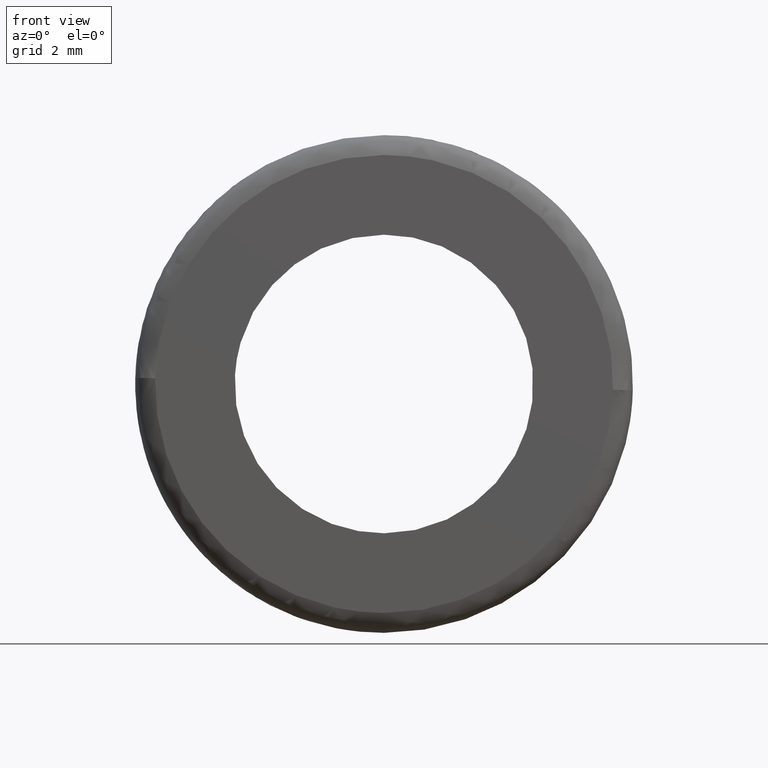
[diagram: clean part render]
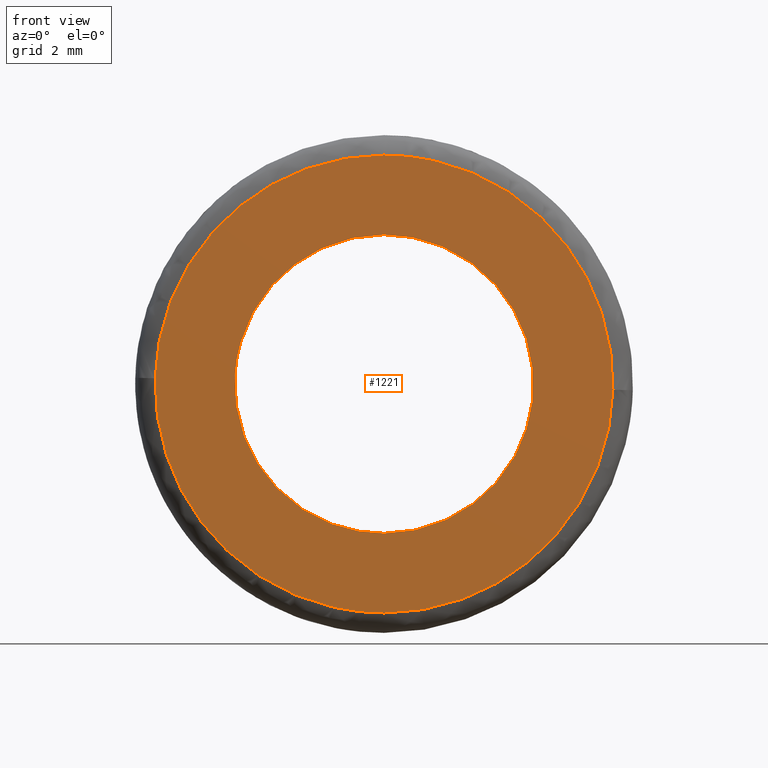
[diagram: same view with one face highlighted and labeled with its STEP entity id]
A machine part, front view. The second image highlights one B-rep face of the part: STEP entity #1221.
In plain terms, the highlighted face is a freeform B-spline surface patch.
Its self-contained STEP definition (entity closure, byte-faithful):
#701=CARTESIAN_POINT('',(4.468543426855896,-1.023782E-015,-0.531149359672578));
#702=VERTEX_POINT('',#701);
#708=CARTESIAN_POINT('',(0.0,-8.266093E-016,4.500000000000000));
#709=VERTEX_POINT('',#708);
#710=CARTESIAN_POINT('',(4.468543426855896,-1.023782E-015,-0.531149359672578));
#711=CARTESIAN_POINT('',(4.500000000000001,-8.266093E-016,-0.266506165468297));
#712=CARTESIAN_POINT('',(4.500000000000000,-8.266093E-016,-1.928755E-016));
#713=CARTESIAN_POINT('',(4.500000000000000,-8.266093E-016,4.500000000000000));
#714=CARTESIAN_POINT('',(0.0,-8.266093E-016,4.500000000000000));
#722=(BOUNDED_CURVE()B_SPLINE_CURVE(2,(#710,#711,#712,#713,#714),.UNSPECIFIED.,.F.,.U.)B_SPLINE_CURVE_WITH_KNOTS((3,2,3),(0.229562651132181,0.250000000000000,0.500000000000000),.UNSPECIFIED.)CURVE()GEOMETRIC_REPRESENTATION_ITEM()RATIONAL_B_SPLINE_CURVE((0.956027102323862,0.976056156424364,1.0,0.707106781186547,1.0))REPRESENTATION_ITEM(''));
#723=EDGE_CURVE('',#702,#709,#722,.T.);
#725=CARTESIAN_POINT('',(-4.491606644914510,-1.356994E-015,0.274717577448348));
#726=VERTEX_POINT('',#725);
#727=CARTESIAN_POINT('',(0.0,-8.266093E-016,4.500000000000000));
#728=CARTESIAN_POINT('',(-4.233178907124497,-8.266093E-016,4.500000000000000));
#729=CARTESIAN_POINT('',(-4.491606644914510,-1.356994E-015,0.274717577448348));
#737=(BOUNDED_CURVE()B_SPLINE_CURVE(2,(#727,#728,#729),.UNSPECIFIED.,.F.,.U.)B_SPLINE_CURVE_WITH_KNOTS((3,3),(0.500000000000000,0.739333027583353),.UNSPECIFIED.)CURVE()GEOMETRIC_REPRESENTATION_ITEM()RATIONAL_B_SPLINE_CURVE((1.0,0.719603916730972,0.976072181712267))REPRESENTATION_ITEM(''));
#738=EDGE_CURVE('',#709,#726,#737,.T.);
#812=CARTESIAN_POINT('',(0.0,-8.266093E-016,-4.500000000000000));
#813=VERTEX_POINT('',#812);
#814=CARTESIAN_POINT('',(-4.491606644914510,-1.356994E-015,0.274717577448348));
#815=CARTESIAN_POINT('',(-4.500000000000000,-8.266093E-016,0.137486582000554));
#816=CARTESIAN_POINT('',(-4.500000000000000,-8.266093E-016,-1.928755E-016));
#817=CARTESIAN_POINT('',(-4.500000000000000,-8.266093E-016,-4.500000000000000));
#818=CARTESIAN_POINT('',(0.0,-8.266093E-016,-4.500000000000000));
#826=(BOUNDED_CURVE()B_SPLINE_CURVE(2,(#814,#815,#816,#817,#818),.UNSPECIFIED.,.F.,.U.)B_SPLINE_CURVE_WITH_KNOTS((3,2,3),(0.739333027583352,0.750000000000000,1.0),.UNSPECIFIED.)CURVE()GEOMETRIC_REPRESENTATION_ITEM()RATIONAL_B_SPLINE_CURVE((0.976072181712265,0.987502864455574,1.0,0.707106781186547,1.0))REPRESENTATION_ITEM(''));
#827=EDGE_CURVE('',#726,#813,#826,.T.);
#829=CARTESIAN_POINT('',(0.0,-8.266093E-016,-4.500000000000000));
#830=CARTESIAN_POINT('',(3.996789596834808,-8.266093E-016,-4.500000000000000));
#831=CARTESIAN_POINT('',(4.468543426855896,-1.023782E-015,-0.531149359672578));
#839=(BOUNDED_CURVE()B_SPLINE_CURVE(2,(#829,#830,#831),.UNSPECIFIED.,.F.,.U.)B_SPLINE_CURVE_WITH_KNOTS((3,3),(0.0,0.229562651132181),.UNSPECIFIED.)CURVE()GEOMETRIC_REPRESENTATION_ITEM()RATIONAL_B_SPLINE_CURVE((1.0,0.731050624762184,0.956027102323862))REPRESENTATION_ITEM(''));
#840=EDGE_CURVE('',#813,#702,#839,.T.);
#1026=CARTESIAN_POINT('',(6.897820906485180,-1.804910E-014,-0.173397658588621));
#1027=VERTEX_POINT('',#1026);
#1041=CARTESIAN_POINT('',(0.0,-1.267468E-015,-6.900000000000000));
#1042=VERTEX_POINT('',#1041);
#1043=CARTESIAN_POINT('',(0.0,-1.267468E-015,-6.900000000000000));
#1044=CARTESIAN_POINT('',(6.728727345609864,-1.267468E-015,-6.900000000000000));
#1045=CARTESIAN_POINT('',(6.897820906485179,-1.804910E-014,-0.173397658588621));
#1053=(BOUNDED_CURVE()B_SPLINE_CURVE(2,(#1043,#1044,#1045),.UNSPECIFIED.,.F.,.U.)B_SPLINE_CURVE_WITH_KNOTS((3,3),(0.0,0.245579891768856),.UNSPECIFIED.)CURVE()GEOMETRIC_REPRESENTATION_ITEM()RATIONAL_B_SPLINE_CURVE((1.0,0.712285260095842,0.989826157679425))REPRESENTATION_ITEM(''));
#1054=EDGE_CURVE('',#1042,#1027,#1053,.T.);
#1056=CARTESIAN_POINT('',(-6.897820906485181,-1.804910E-014,0.173397658588621));
#1057=VERTEX_POINT('',#1056);
#1058=CARTESIAN_POINT('',(-6.897820906485181,-1.804910E-014,0.173397658588621));
#1059=CARTESIAN_POINT('',(-6.899999999999999,-1.267468E-015,0.086712521670088));
#1060=CARTESIAN_POINT('',(-6.900000000000000,-1.267468E-015,-1.928755E-016));
#1061=CARTESIAN_POINT('',(-6.900000000000000,-1.267468E-015,-6.900000000000000));
#1062=CARTESIAN_POINT('',(0.0,-1.267468E-015,-6.900000000000000));
#1070=(BOUNDED_CURVE()B_SPLINE_CURVE(2,(#1058,#1059,#1060,#1061,#1062),.UNSPECIFIED.,.F.,.U.)B_SPLINE_CURVE_WITH_KNOTS((3,2,3),(0.745579891768856,0.750000000000000,1.0),.UNSPECIFIED.)CURVE()GEOMETRIC_REPRESENTATION_ITEM()RATIONAL_B_SPLINE_CURVE((0.989826157679425,0.994821521090705,1.0,0.707106781186548,1.0))REPRESENTATION_ITEM(''));
#1071=EDGE_CURVE('',#1057,#1042,#1070,.T.);
#1115=CARTESIAN_POINT('',(0.0,-1.267468E-015,6.900000000000000));
#1116=VERTEX_POINT('',#1115);
#1117=CARTESIAN_POINT('',(0.0,-1.267468E-015,6.900000000000000));
#1118=CARTESIAN_POINT('',(-6.728727345609904,-1.267468E-015,6.900000000000000));
#1119=CARTESIAN_POINT('',(-6.897820906485181,-1.804910E-014,0.173397658588621));
#1127=(BOUNDED_CURVE()B_SPLINE_CURVE(2,(#1117,#1118,#1119),.UNSPECIFIED.,.F.,.U.)B_SPLINE_CURVE_WITH_KNOTS((3,3),(0.500000000000000,0.745579891768857),.UNSPECIFIED.)CURVE()GEOMETRIC_REPRESENTATION_ITEM()RATIONAL_B_SPLINE_CURVE((1.0,0.712285260095841,0.989826157679427))REPRESENTATION_ITEM(''));
#1128=EDGE_CURVE('',#1116,#1057,#1127,.T.);
#1130=CARTESIAN_POINT('',(6.897820906485179,-1.804910E-014,-0.173397658588621));
#1131=CARTESIAN_POINT('',(6.900000000000000,-1.267468E-015,-0.086712521670089));
#1132=CARTESIAN_POINT('',(6.900000000000000,-1.267468E-015,-1.928755E-016));
#1133=CARTESIAN_POINT('',(6.900000000000000,-1.267468E-015,6.900000000000000));
#1134=CARTESIAN_POINT('',(0.0,-1.267468E-015,6.900000000000000));
#1142=(BOUNDED_CURVE()B_SPLINE_CURVE(2,(#1130,#1131,#1132,#1133,#1134),.UNSPECIFIED.,.F.,.U.)B_SPLINE_CURVE_WITH_KNOTS((3,2,3),(0.245579891768856,0.250000000000000,0.500000000000000),.UNSPECIFIED.)CURVE()GEOMETRIC_REPRESENTATION_ITEM()RATIONAL_B_SPLINE_CURVE((0.989826157679425,0.994821521090705,1.0,0.707106781186548,1.0))REPRESENTATION_ITEM(''));
#1143=EDGE_CURVE('',#1027,#1116,#1142,.T.);
#1204=CARTESIAN_POINT('',(-7.586913317808033,-1.047038E-015,-7.589310102797448));
#1205=CARTESIAN_POINT('',(-7.586913317808033,-1.047038E-015,7.589310349560679));
#1206=CARTESIAN_POINT('',(7.586913564493332,-1.047038E-015,-7.589310102797448));
#1207=CARTESIAN_POINT('',(7.586913564493332,-1.047038E-015,7.589310349560679));
#1208=B_SPLINE_SURFACE_WITH_KNOTS('',1,1,((#1204,#1206),(#1205,#1207)),.UNSPECIFIED.,.F.,.F.,.U.,(2,2),(2,2),(0.0,15.178620452358130),(0.0,15.173826882301370),.UNSPECIFIED.);
#1209=ORIENTED_EDGE('',*,*,#1054,.T.);
#1210=ORIENTED_EDGE('',*,*,#1143,.T.);
#1211=ORIENTED_EDGE('',*,*,#1128,.T.);
#1212=ORIENTED_EDGE('',*,*,#1071,.T.);
#1213=EDGE_LOOP('',(#1209,#1210,#1211,#1212));
#1214=FACE_OUTER_BOUND('',#1213,.T.);
#1215=ORIENTED_EDGE('',*,*,#738,.F.);
#1216=ORIENTED_EDGE('',*,*,#723,.F.);
#1217=ORIENTED_EDGE('',*,*,#840,.F.);
#1218=ORIENTED_EDGE('',*,*,#827,.F.);
#1219=EDGE_LOOP('',(#1215,#1216,#1217,#1218));
#1220=FACE_BOUND('',#1219,.T.);
#1221=ADVANCED_FACE('',(#1214,#1220),#1208,.F.);